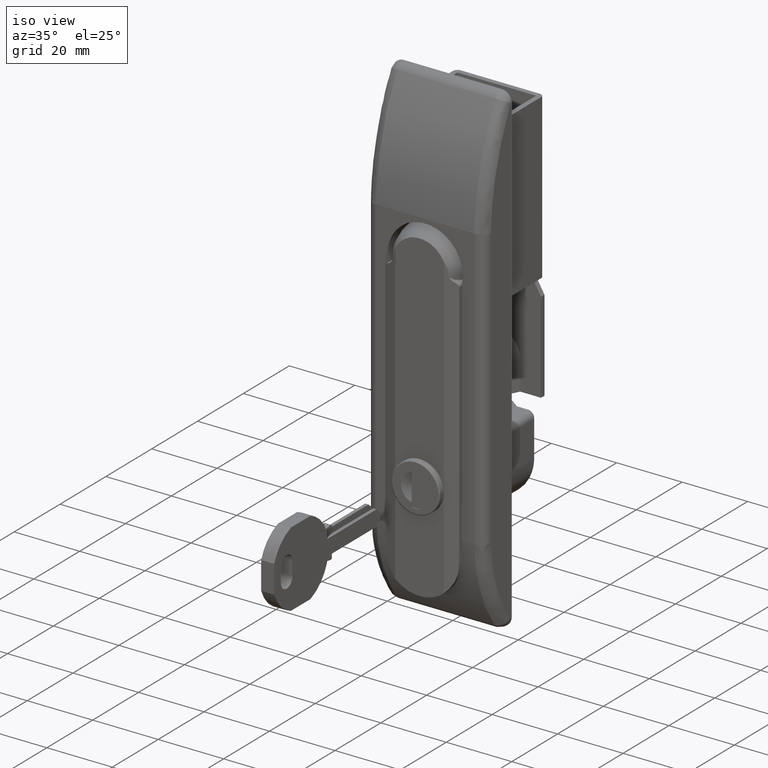
[diagram: clean part render]
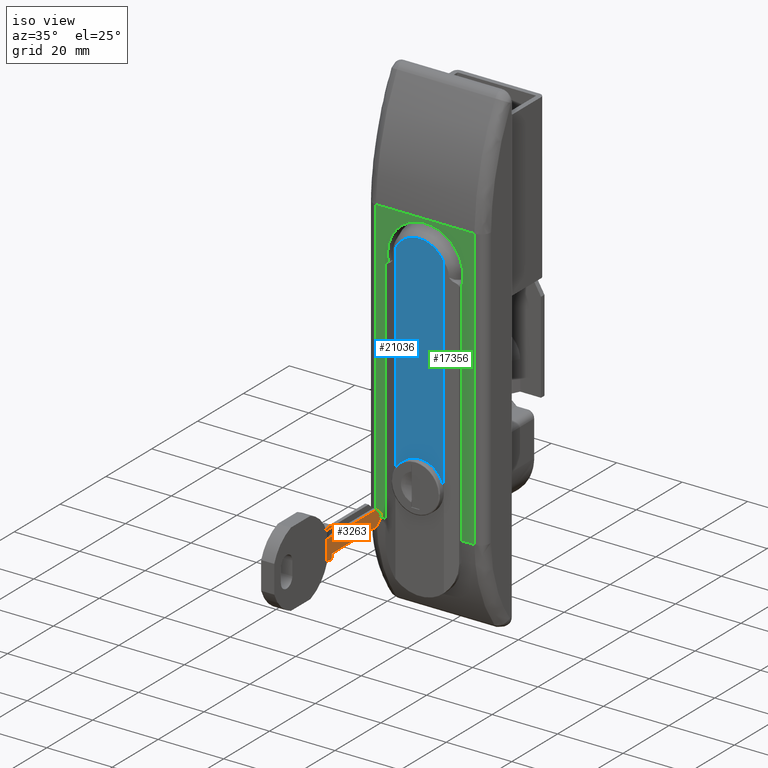
[diagram: same view with three faces highlighted in distinct colors, each labeled with its STEP entity id]
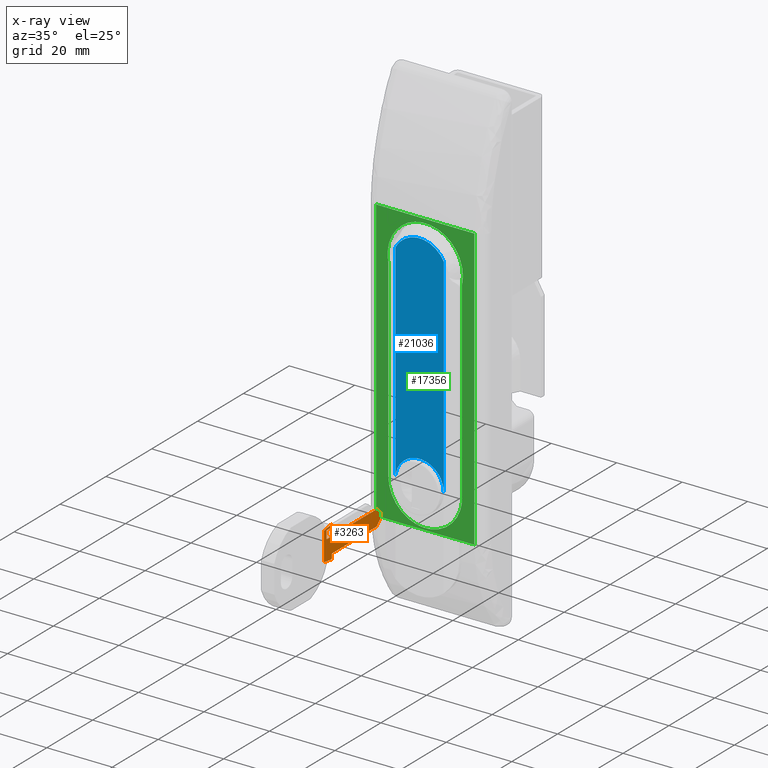
[diagram: x-ray of the same camera — body ghosted, the three highlighted faces saturated]
A machine part, iso view with three faces highlighted in distinct colors.
The next image is the same camera in x-ray (body ghosted, the three faces saturated) — at least one of them is partly hidden behind the body in this view.
Their STEP definitions:

[orange] entity #3263 — the highlighted face is a freeform B-spline surface patch.
#2053=CARTESIAN_POINT('',(1.050000000000000,-54.257704797479299,-84.249999999997399));
#2054=VERTEX_POINT('',#2053);
#2060=CARTESIAN_POINT('',(1.050000000000000,-56.557704797479303,-84.249999999997499));
#2061=VERTEX_POINT('',#2060);
#2062=CARTESIAN_POINT('',(1.050000000000000,-56.557704797479303,-84.249999999997499));
#2063=CARTESIAN_POINT('',(1.050000000000000,-54.257704797479299,-84.249999999997399));
#2064=QUASI_UNIFORM_CURVE('',1,(#2062,#2063),.UNSPECIFIED.,.F.,.U.);
#2065=EDGE_CURVE('',#2061,#2054,#2064,.T.);
#2097=CARTESIAN_POINT('',(1.050000000000000,-56.557704797479303,-86.749999999997399));
#2098=VERTEX_POINT('',#2097);
#2112=CARTESIAN_POINT('',(1.050000000000000,-34.798329797553400,-86.749999999997399));
#2113=VERTEX_POINT('',#2112);
#2114=CARTESIAN_POINT('',(1.050000000000000,-56.557704797479303,-86.749999999997399));
#2115=CARTESIAN_POINT('',(1.050000000000000,-34.798329797553400,-86.749999999997399));
#2116=QUASI_UNIFORM_CURVE('',1,(#2114,#2115),.UNSPECIFIED.,.F.,.U.);
#2117=EDGE_CURVE('',#2098,#2113,#2116,.T.);
#2149=CARTESIAN_POINT('',(1.050000000000000,-56.557704797479303,-86.749999999997399));
#2150=CARTESIAN_POINT('',(1.050000000000000,-56.557704797479303,-84.249999999997499));
#2151=QUASI_UNIFORM_CURVE('',1,(#2149,#2150),.UNSPECIFIED.,.F.,.U.);
#2152=EDGE_CURVE('',#2098,#2061,#2151,.T.);
#2233=CARTESIAN_POINT('',(1.050000000000000,-54.257704797479299,-92.576441245440989));
#2234=VERTEX_POINT('',#2233);
#2240=CARTESIAN_POINT('',(1.050000000000000,-54.837216853787602,-93.070078595022295));
#2241=VERTEX_POINT('',#2240);
#2242=CARTESIAN_POINT('',(1.050000000000000,-54.837216853787602,-93.070078595022267));
#2243=CARTESIAN_POINT('',(1.050000000000000,-54.609254380183032,-93.106797382716920));
#2244=CARTESIAN_POINT('',(1.050000000000000,-54.433479588831162,-92.957069691667854));
#2245=CARTESIAN_POINT('',(1.050000000000000,-54.257704797479299,-92.807342000618789));
#2246=CARTESIAN_POINT('',(1.050000000000000,-54.257704797479299,-92.576441245440989));
#2254=(BOUNDED_CURVE()B_SPLINE_CURVE(2,(#2242,#2243,#2244,#2245,#2246),.UNSPECIFIED.,.F.,.U.)B_SPLINE_CURVE_WITH_KNOTS((3,2,3),(0.0,0.500000000000000,1.0),.UNSPECIFIED.)CURVE()GEOMETRIC_REPRESENTATION_ITEM()RATIONAL_B_SPLINE_CURVE((1.0,0.907868497442298,1.0,0.907868497442298,1.0))REPRESENTATION_ITEM(''));
#2255=EDGE_CURVE('',#2241,#2234,#2254,.T.);
#2277=CARTESIAN_POINT('',(1.050000000000000,-54.257704797479299,-91.550000000065012));
#2278=VERTEX_POINT('',#2277);
#2284=CARTESIAN_POINT('',(1.050000000000000,-54.257704797479299,-91.550000000065012));
#2285=CARTESIAN_POINT('',(1.050000000000000,-54.257704797479299,-92.576441245440989));
#2286=QUASI_UNIFORM_CURVE('',1,(#2284,#2285),.UNSPECIFIED.,.F.,.U.);
#2287=EDGE_CURVE('',#2278,#2234,#2286,.T.);
#2305=CARTESIAN_POINT('',(1.050000000000000,-34.757704797479249,-91.550000000065012));
#2306=VERTEX_POINT('',#2305);
#2312=CARTESIAN_POINT('',(1.050000000000000,-34.757704797479249,-91.550000000065012));
#2313=CARTESIAN_POINT('',(1.050000000000000,-54.257704797479299,-91.550000000065012));
#2314=QUASI_UNIFORM_CURVE('',1,(#2312,#2313),.UNSPECIFIED.,.F.,.U.);
#2315=EDGE_CURVE('',#2306,#2278,#2314,.T.);
#2327=CARTESIAN_POINT('',(1.050000000000000,-33.136661939304503,-90.009008641059395));
#2328=VERTEX_POINT('',#2327);
#2334=CARTESIAN_POINT('',(1.050000000000000,-33.136661939304503,-90.009008641059395));
#2335=CARTESIAN_POINT('',(1.050000000000000,-34.757704797479249,-91.550000000065012));
#2336=QUASI_UNIFORM_CURVE('',1,(#2334,#2335),.UNSPECIFIED.,.F.,.U.);
#2337=EDGE_CURVE('',#2328,#2306,#2336,.T.);
#2356=CARTESIAN_POINT('',(1.050000000000000,-33.153720403104813,-88.253642874921695));
#2357=VERTEX_POINT('',#2356);
#2358=CARTESIAN_POINT('',(1.050000000000000,-34.798329797553400,-86.749999999997399));
#2359=CARTESIAN_POINT('',(1.050000000000000,-33.153720403104813,-88.253642874921695));
#2360=QUASI_UNIFORM_CURVE('',1,(#2358,#2359),.UNSPECIFIED.,.F.,.U.);
#2361=EDGE_CURVE('',#2113,#2357,#2360,.T.);
#2422=CARTESIAN_POINT('',(1.050000000000000,-54.257704797479199,-83.943558754689505));
#2423=VERTEX_POINT('',#2422);
#2429=CARTESIAN_POINT('',(1.050000000000000,-54.257704797479199,-83.943558754689505));
#2430=CARTESIAN_POINT('',(1.050000000000000,-54.257704797479299,-84.249999999997399));
#2431=QUASI_UNIFORM_CURVE('',1,(#2429,#2430),.UNSPECIFIED.,.F.,.U.);
#2432=EDGE_CURVE('',#2423,#2054,#2431,.T.);
#2469=CARTESIAN_POINT('',(1.050000000000000,-54.837216853787702,-83.449921405108213));
#2470=VERTEX_POINT('',#2469);
#2476=CARTESIAN_POINT('',(1.050000000000000,-54.257704797479299,-83.943558754689505));
#2477=CARTESIAN_POINT('',(1.050000000000000,-54.257704797479313,-83.712657999511677));
#2478=CARTESIAN_POINT('',(1.050000000000000,-54.433479588831197,-83.562930308462612));
#2479=CARTESIAN_POINT('',(1.050000000000000,-54.609254380183110,-83.413202617413560));
#2480=CARTESIAN_POINT('',(1.050000000000000,-54.837216853787702,-83.449921405108242));
#2488=(BOUNDED_CURVE()B_SPLINE_CURVE(2,(#2476,#2477,#2478,#2479,#2480),.UNSPECIFIED.,.F.,.U.)B_SPLINE_CURVE_WITH_KNOTS((3,2,3),(0.0,0.500000000000000,1.0),.UNSPECIFIED.)CURVE()GEOMETRIC_REPRESENTATION_ITEM()RATIONAL_B_SPLINE_CURVE((1.0,0.907868497442276,1.0,0.907868497442276,1.0))REPRESENTATION_ITEM(''));
#2489=EDGE_CURVE('',#2423,#2470,#2488,.T.);
#2581=CARTESIAN_POINT('',(1.050000000000000,-57.785957262396998,-83.924886303139289));
#2582=VERTEX_POINT('',#2581);
#2588=CARTESIAN_POINT('',(1.050000000000000,-57.785957262396998,-83.924886303139289));
#2589=CARTESIAN_POINT('',(1.050000000000000,-54.837216853787702,-83.449921405108213));
#2590=QUASI_UNIFORM_CURVE('',1,(#2588,#2589),.UNSPECIFIED.,.F.,.U.);
#2591=EDGE_CURVE('',#2582,#2470,#2590,.T.);
#2603=CARTESIAN_POINT('',(1.050000000000000,-57.793082709607297,-92.593965973951100));
#2604=VERTEX_POINT('',#2603);
#2612=CARTESIAN_POINT('',(1.050000000000000,-54.837216853787602,-93.070078595022295));
#2613=CARTESIAN_POINT('',(1.050000000000000,-57.793082709607297,-92.593965973951100));
#2614=QUASI_UNIFORM_CURVE('',1,(#2612,#2613),.UNSPECIFIED.,.F.,.U.);
#2615=EDGE_CURVE('',#2241,#2604,#2614,.T.);
#2926=CARTESIAN_POINT('',(1.050000000000000,-57.757704797479313,-84.000576509754893));
#2927=VERTEX_POINT('',#2926);
#2933=CARTESIAN_POINT('',(1.050000000000000,-57.757704797479313,-84.000576509754893));
#2934=CARTESIAN_POINT('',(1.050000000000000,-57.771706333125927,-83.962684861557619));
#2935=CARTESIAN_POINT('',(1.050000000000000,-57.785957262397083,-83.924886303139317));
#2943=(BOUNDED_CURVE()B_SPLINE_CURVE(2,(#2933,#2934,#2935),.UNSPECIFIED.,.F.,.U.)CURVE()GEOMETRIC_REPRESENTATION_ITEM()QUASI_UNIFORM_CURVE()RATIONAL_B_SPLINE_CURVE((1.0,0.999994571775756,1.0))REPRESENTATION_ITEM(''));
#2944=EDGE_CURVE('',#2927,#2582,#2943,.T.);
#3058=CARTESIAN_POINT('',(1.050000000000000,-57.757704797479313,-92.499423490375307));
#3059=VERTEX_POINT('',#3058);
#3065=CARTESIAN_POINT('',(1.050000000000000,-57.757704797479313,-92.499423490375307));
#3066=CARTESIAN_POINT('',(1.050000000000000,-57.757704797479313,-84.000576509754893));
#3067=QUASI_UNIFORM_CURVE('',1,(#3065,#3066),.UNSPECIFIED.,.F.,.U.);
#3068=EDGE_CURVE('',#3059,#2927,#3067,.T.);
#3090=CARTESIAN_POINT('',(1.050000000000000,-57.793082709607383,-92.593965973951072));
#3091=CARTESIAN_POINT('',(1.050000000000001,-57.775199143739407,-92.546767555387845));
#3092=CARTESIAN_POINT('',(1.050000000000000,-57.757704797479313,-92.499423490375307));
#3100=(BOUNDED_CURVE()B_SPLINE_CURVE(2,(#3090,#3091,#3092),.UNSPECIFIED.,.F.,.U.)CURVE()GEOMETRIC_REPRESENTATION_ITEM()QUASI_UNIFORM_CURVE()RATIONAL_B_SPLINE_CURVE((1.0,0.999991525776938,1.0))REPRESENTATION_ITEM(''));
#3101=EDGE_CURVE('',#2604,#3059,#3100,.T.);
#3226=CARTESIAN_POINT('',(1.050000000000050,-59.043310782298477,-93.557558986496630));
#3227=CARTESIAN_POINT('',(1.050000000000050,-31.513271804850831,-93.557558986496630));
#3228=CARTESIAN_POINT('',(1.050000000000050,-59.043310782298477,-82.962445061456805));
#3229=CARTESIAN_POINT('',(1.050000000000050,-31.513271804850831,-82.962445061456805));
#3230=B_SPLINE_SURFACE_WITH_KNOTS('',1,1,((#3226,#3228),(#3227,#3229)),.UNSPECIFIED.,.F.,.F.,.U.,(2,2),(2,2),(0.0,27.530038977447649),(0.0,10.595113925039829),.UNSPECIFIED.);
#3231=ORIENTED_EDGE('',*,*,#2361,.F.);
#3232=ORIENTED_EDGE('',*,*,#2117,.F.);
#3233=ORIENTED_EDGE('',*,*,#2152,.T.);
#3234=ORIENTED_EDGE('',*,*,#2065,.T.);
#3235=ORIENTED_EDGE('',*,*,#2432,.F.);
#3236=ORIENTED_EDGE('',*,*,#2489,.T.);
#3237=ORIENTED_EDGE('',*,*,#2591,.F.);
#3238=ORIENTED_EDGE('',*,*,#2944,.F.);
#3239=ORIENTED_EDGE('',*,*,#3068,.F.);
#3240=ORIENTED_EDGE('',*,*,#3101,.F.);
#3241=ORIENTED_EDGE('',*,*,#2615,.F.);
#3242=ORIENTED_EDGE('',*,*,#2255,.T.);
#3243=ORIENTED_EDGE('',*,*,#2287,.F.);
#3244=ORIENTED_EDGE('',*,*,#2315,.F.);
#3245=ORIENTED_EDGE('',*,*,#2337,.F.);
#3246=CARTESIAN_POINT('',(1.050000000000000,-33.136661939304467,-90.009008641059424));
#3247=CARTESIAN_POINT('',(1.050000000000000,-32.758428939987979,-89.649453814548679));
#3248=CARTESIAN_POINT('',(1.050000000000000,-32.763500101059563,-89.127616523466017));
#3249=CARTESIAN_POINT('',(1.050000000000000,-32.768571262131132,-88.605779232383327));
#3250=CARTESIAN_POINT('',(1.050000000000000,-33.153720403104828,-88.253642874921724));
#3258=(BOUNDED_CURVE()B_SPLINE_CURVE(2,(#3246,#3247,#3248,#3249,#3250),.UNSPECIFIED.,.F.,.U.)B_SPLINE_CURVE_WITH_KNOTS((3,2,3),(0.0,0.500000000000000,1.0),.UNSPECIFIED.)CURVE()GEOMETRIC_REPRESENTATION_ITEM()RATIONAL_B_SPLINE_CURVE((1.0,0.917035737966988,1.0,0.917035737966988,1.0))REPRESENTATION_ITEM(''));
#3259=EDGE_CURVE('',#2328,#2357,#3258,.T.);
#3260=ORIENTED_EDGE('',*,*,#3259,.T.);
#3261=EDGE_LOOP('',(#3231,#3232,#3233,#3234,#3235,#3236,#3237,#3238,#3239,#3240,#3241,#3242,#3243,#3244,#3245,#3260));
#3262=FACE_OUTER_BOUND('',#3261,.T.);
#3263=ADVANCED_FACE('',(#3262),#3230,.T.);

[blue] entity #21036 — the highlighted face is a freeform B-spline surface patch.
#18708=CARTESIAN_POINT('',(7.400000000000000,-14.499999999999719,-88.249999999998607));
#18709=VERTEX_POINT('',#18708);
#18723=CARTESIAN_POINT('',(-7.400000000000000,-14.500000000000000,-88.249999999998607));
#18724=VERTEX_POINT('',#18723);
#18725=CARTESIAN_POINT('',(7.400000000000050,-14.499999999999741,-88.249999999998607));
#18726=CARTESIAN_POINT('',(7.400000000000750,-14.499999999999737,-83.977608007994831));
#18727=CARTESIAN_POINT('',(3.700000000000401,-14.499999999999741,-81.841412011992759));
#18728=CARTESIAN_POINT('',(5.234008E-014,-14.499999999999737,-79.705216015990672));
#18729=CARTESIAN_POINT('',(-3.700000000000298,-14.499999999999741,-81.841412011992759));
#18730=CARTESIAN_POINT('',(-7.400000000000648,-14.499999999999737,-83.977608007994831));
#18731=CARTESIAN_POINT('',(-7.399999999999951,-14.499999999999741,-88.249999999998607));
#18739=(BOUNDED_CURVE()B_SPLINE_CURVE(2,(#18725,#18726,#18727,#18728,#18729,#18730,#18731),.UNSPECIFIED.,.F.,.U.)B_SPLINE_CURVE_WITH_KNOTS((3,2,2,3),(0.0,0.333333333333333,0.666666666666667,1.0),.UNSPECIFIED.)CURVE()GEOMETRIC_REPRESENTATION_ITEM()RATIONAL_B_SPLINE_CURVE((1.0,0.866025403784412,1.0,0.866025403784412,1.0,0.866025403784412,1.0))REPRESENTATION_ITEM(''));
#18740=EDGE_CURVE('',#18709,#18724,#18739,.T.);
#20032=CARTESIAN_POINT('',(-7.400000000000000,-14.500000000000000,-24.502667615486850));
#20033=VERTEX_POINT('',#20032);
#20034=CARTESIAN_POINT('',(-7.400000000000000,-14.500000000000000,-24.502667615486850));
#20035=CARTESIAN_POINT('',(-7.400000000000000,-14.500000000000000,-88.249999999998607));
#20036=QUASI_UNIFORM_CURVE('',1,(#20034,#20035),.UNSPECIFIED.,.F.,.U.);
#20037=EDGE_CURVE('',#20033,#18724,#20036,.T.);
#20134=CARTESIAN_POINT('',(7.400000000000000,-14.499999999999719,-24.502667615486398));
#20135=VERTEX_POINT('',#20134);
#20149=CARTESIAN_POINT('',(7.400000000000000,-14.499999999999719,-24.502667615486398));
#20150=CARTESIAN_POINT('',(7.400000000000000,-14.499999999999719,-88.249999999998607));
#20151=QUASI_UNIFORM_CURVE('',1,(#20149,#20150),.UNSPECIFIED.,.F.,.U.);
#20152=EDGE_CURVE('',#20135,#18709,#20151,.T.);
#20847=CARTESIAN_POINT('',(7.400000000000000,-14.499999999999719,-24.502667615486398));
#20848=CARTESIAN_POINT('',(5.097216227408793,-14.499999977649839,-19.955272738675049));
#20849=CARTESIAN_POINT('',(0.0,-14.499999977649839,-19.955272738675049));
#20850=CARTESIAN_POINT('',(-5.097216227409068,-14.499999977649839,-19.955272738675049));
#20851=CARTESIAN_POINT('',(-7.400000000000000,-14.500000000000000,-24.502667615486850));
#20859=(BOUNDED_CURVE()B_SPLINE_CURVE(2,(#20847,#20848,#20849,#20850,#20851),.UNSPECIFIED.,.F.,.U.)B_SPLINE_CURVE_WITH_KNOTS((3,2,3),(0.0,0.500000000000000,1.0),.UNSPECIFIED.)CURVE()GEOMETRIC_REPRESENTATION_ITEM()RATIONAL_B_SPLINE_CURVE((1.0,0.851989679565405,1.0,0.851989679565405,1.0))REPRESENTATION_ITEM(''));
#20860=EDGE_CURVE('',#20135,#20033,#20859,.T.);
#21025=CARTESIAN_POINT('',(-8.139260110246543,-14.499999999999700,-91.661321494333279));
#21026=CARTESIAN_POINT('',(-8.139260110246543,-14.499999999999700,-16.543949412533038));
#21027=CARTESIAN_POINT('',(8.139260374891165,-14.499999999999700,-91.661321494333279));
#21028=CARTESIAN_POINT('',(8.139260374891165,-14.499999999999700,-16.543949412533038));
#21029=B_SPLINE_SURFACE_WITH_KNOTS('',1,1,((#21025,#21027),(#21026,#21028)),.UNSPECIFIED.,.F.,.F.,.U.,(2,2),(2,2),(0.0,75.117372081800241),(0.0,16.278520485137712),.UNSPECIFIED.);
#21030=ORIENTED_EDGE('',*,*,#20860,.T.);
#21031=ORIENTED_EDGE('',*,*,#20037,.T.);
#21032=ORIENTED_EDGE('',*,*,#18740,.F.);
#21033=ORIENTED_EDGE('',*,*,#20152,.F.);
#21034=EDGE_LOOP('',(#21030,#21031,#21032,#21033));
#21035=FACE_OUTER_BOUND('',#21034,.T.);
#21036=ADVANCED_FACE('',(#21035),#21029,.F.);

[green] entity #17356 — the highlighted face is a freeform B-spline surface patch.
#13261=CARTESIAN_POINT('',(-11.250000000000000,-12.050000000000001,-89.649999999997306));
#13262=VERTEX_POINT('',#13261);
#13263=CARTESIAN_POINT('',(11.250000000000000,-12.050000000000001,-89.649999999997306));
#13264=VERTEX_POINT('',#13263);
#13265=CARTESIAN_POINT('',(-11.250000000000000,-12.050000000000001,-89.649999999997306));
#13266=CARTESIAN_POINT('',(-11.249999999999998,-12.050000000000001,-100.899999999997290));
#13267=CARTESIAN_POINT('',(0.0,-12.050000000000001,-100.899999999997310));
#13268=CARTESIAN_POINT('',(11.249999999999998,-12.050000000000001,-100.899999999997290));
#13269=CARTESIAN_POINT('',(11.250000000000000,-12.050000000000001,-89.649999999997306));
#13277=(BOUNDED_CURVE()B_SPLINE_CURVE(2,(#13265,#13266,#13267,#13268,#13269),.UNSPECIFIED.,.F.,.U.)B_SPLINE_CURVE_WITH_KNOTS((3,2,3),(0.0,0.500000000000000,1.0),.UNSPECIFIED.)CURVE()GEOMETRIC_REPRESENTATION_ITEM()RATIONAL_B_SPLINE_CURVE((1.0,0.707106781186548,1.0,0.707106781186548,1.0))REPRESENTATION_ITEM(''));
#13278=EDGE_CURVE('',#13262,#13264,#13277,.T.);
#13431=CARTESIAN_POINT('',(-14.999998000742019,-12.050000171802379,-101.429371659458600));
#13432=VERTEX_POINT('',#13431);
#13519=CARTESIAN_POINT('',(-14.999998000742019,-12.050000000000001,-15.572459999997299));
#13520=VERTEX_POINT('',#13519);
#13570=CARTESIAN_POINT('',(-14.999998000742019,-12.050000000000001,-15.572459999997299));
#13571=CARTESIAN_POINT('',(-14.999998000742019,-12.050000171802379,-101.429371659458600));
#13572=QUASI_UNIFORM_CURVE('',1,(#13570,#13571),.UNSPECIFIED.,.F.,.U.);
#13573=EDGE_CURVE('',#13520,#13432,#13572,.T.);
#14035=CARTESIAN_POINT('',(15.0,-12.050000000000001,-15.572459999997299));
#14036=VERTEX_POINT('',#14035);
#14124=CARTESIAN_POINT('',(15.0,-12.050000171802379,-101.429371659458600));
#14125=VERTEX_POINT('',#14124);
#14175=CARTESIAN_POINT('',(15.0,-12.050000171802379,-101.429371659458600));
#14176=CARTESIAN_POINT('',(15.0,-12.050000000000001,-15.572459999997299));
#14177=QUASI_UNIFORM_CURVE('',1,(#14175,#14176),.UNSPECIFIED.,.F.,.U.);
#14178=EDGE_CURVE('',#14125,#14036,#14177,.T.);
#17298=CARTESIAN_POINT('',(-14.999998000742019,-12.050000000000001,-15.572459999997299));
#17299=CARTESIAN_POINT('',(15.0,-12.050000000000001,-15.572459999997299));
#17300=QUASI_UNIFORM_CURVE('',1,(#17298,#17299),.UNSPECIFIED.,.F.,.U.);
#17301=EDGE_CURVE('',#13520,#14036,#17300,.T.);
#17307=CARTESIAN_POINT('',(-16.498498124351780,-12.050000000000001,-105.717927454294400));
#17308=CARTESIAN_POINT('',(-16.498498124351780,-12.050000000000001,-11.283904972782141));
#17309=CARTESIAN_POINT('',(16.498500660051530,-12.050000000000001,-105.717927454294400));
#17310=CARTESIAN_POINT('',(16.498500660051530,-12.050000000000001,-11.283904972782141));
#17311=B_SPLINE_SURFACE_WITH_KNOTS('',1,1,((#17307,#17309),(#17308,#17310)),.UNSPECIFIED.,.F.,.F.,.U.,(2,2),(2,2),(0.0,94.434022481512258),(0.0,32.996998784403317),.UNSPECIFIED.);
#17312=ORIENTED_EDGE('',*,*,#17301,.F.);
#17313=ORIENTED_EDGE('',*,*,#13573,.T.);
#17314=CARTESIAN_POINT('',(-14.999998000742019,-12.050000171802379,-101.429371659458600));
#17315=CARTESIAN_POINT('',(15.0,-12.050000171802379,-101.429371659458600));
#17316=QUASI_UNIFORM_CURVE('',1,(#17314,#17315),.UNSPECIFIED.,.F.,.U.);
#17317=EDGE_CURVE('',#13432,#14125,#17316,.T.);
#17318=ORIENTED_EDGE('',*,*,#17317,.T.);
#17319=ORIENTED_EDGE('',*,*,#14178,.T.);
#17320=EDGE_LOOP('',(#17312,#17313,#17318,#17319));
#17321=FACE_OUTER_BOUND('',#17320,.T.);
#17322=CARTESIAN_POINT('',(11.250000000000000,-12.050000000000001,-30.634848003540149));
#17323=VERTEX_POINT('',#17322);
#17324=CARTESIAN_POINT('',(11.250000000000000,-12.050000000000001,-89.649999999997306));
#17325=CARTESIAN_POINT('',(11.250000000000000,-12.050000000000001,-30.634848003540149));
#17326=QUASI_UNIFORM_CURVE('',1,(#17324,#17325),.UNSPECIFIED.,.F.,.U.);
#17327=EDGE_CURVE('',#13264,#17323,#17326,.T.);
#17328=ORIENTED_EDGE('',*,*,#17327,.F.);
#17329=ORIENTED_EDGE('',*,*,#13278,.F.);
#17330=CARTESIAN_POINT('',(-11.250000000000000,-12.050000000000001,-30.634848003539702));
#17331=VERTEX_POINT('',#17330);
#17332=CARTESIAN_POINT('',(-11.250000000000000,-12.050000000000001,-30.634848003539702));
#17333=CARTESIAN_POINT('',(-11.250000000000000,-12.050000000000001,-89.649999999997306));
#17334=QUASI_UNIFORM_CURVE('',1,(#17332,#17333),.UNSPECIFIED.,.F.,.U.);
#17335=EDGE_CURVE('',#17331,#13262,#17334,.T.);
#17336=ORIENTED_EDGE('',*,*,#17335,.F.);
#17337=CARTESIAN_POINT('',(11.249999999999980,-12.050000000000001,-30.634848003540139));
#17338=CARTESIAN_POINT('',(12.857969438569551,-12.050000000000001,-23.049603091899126));
#17339=CARTESIAN_POINT('',(6.428984719284899,-12.050000000000001,-18.714898769323678));
#17340=CARTESIAN_POINT('',(2.541370E-013,-12.050000000000001,-14.380194446748234));
#17341=CARTESIAN_POINT('',(-6.428984719284549,-12.050000000000001,-18.714898769323440));
#17342=CARTESIAN_POINT('',(-12.857969438569345,-12.050000000000001,-23.049603091898643));
#17343=CARTESIAN_POINT('',(-11.250000000000080,-12.050000000000001,-30.634848003539719));
#17351=(BOUNDED_CURVE()B_SPLINE_CURVE(2,(#17337,#17338,#17339,#17340,#17341,#17342,#17343),.UNSPECIFIED.,.F.,.U.)B_SPLINE_CURVE_WITH_KNOTS((3,2,2,3),(0.0,0.333333333333333,0.666666666666667,1.0),.UNSPECIFIED.)CURVE()GEOMETRIC_REPRESENTATION_ITEM()RATIONAL_B_SPLINE_CURVE((1.0,0.829139237449925,1.0,0.829139237449925,1.0,0.829139237449925,1.0))REPRESENTATION_ITEM(''));
#17352=EDGE_CURVE('',#17323,#17331,#17351,.T.);
#17353=ORIENTED_EDGE('',*,*,#17352,.F.);
#17354=EDGE_LOOP('',(#17328,#17329,#17336,#17353));
#17355=FACE_BOUND('',#17354,.T.);
#17356=ADVANCED_FACE('',(#17321,#17355),#17311,.F.);